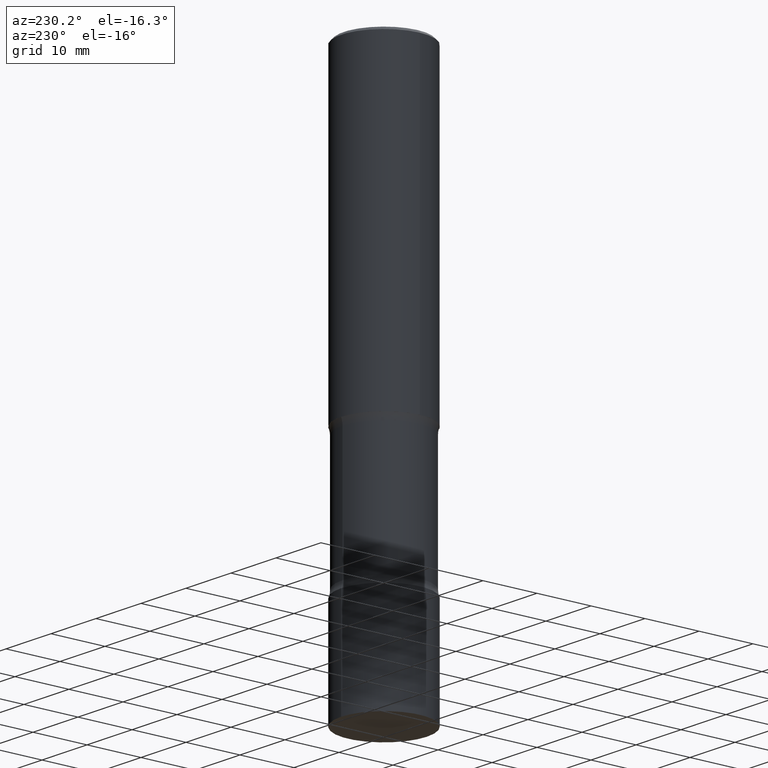
[diagram: clean part render]
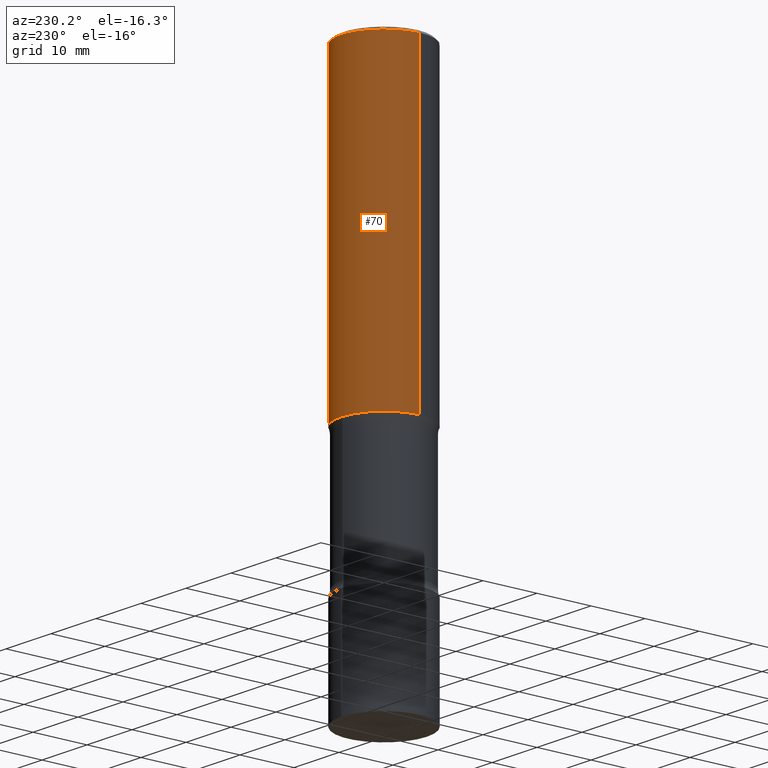
[diagram: same view with one face highlighted and labeled with its STEP entity id]
A machine part, auxiliary view. The second image highlights one B-rep face of the part: STEP entity #70.
In plain terms, the highlighted cylindrical surface (partial cylindrical patch) has radius 7.9375 mm, axis along (-0, 0, 1).
Its self-contained STEP definition (entity closure, byte-faithful):
#2 = VERTEX_POINT ( 'NONE', #223 ) ;
#9 = CARTESIAN_POINT ( 'NONE',  ( -0.3124999999999998890, 2.220446049250312292E-15, -1.537167215704657391E-29 ) ) ;
#29 = DIRECTION ( 'NONE',  ( -2.445468806185136597E-29, 3.491481338843145583E-15, 1.000000000000000000 ) ) ;
#34 = FACE_OUTER_BOUND ( 'NONE', #216, .T. ) ;
#39 = VECTOR ( 'NONE', #299, 39.37007874015748143 ) ;
#46 = ORIENTED_EDGE ( 'NONE', *, *, #487, .F. ) ;
#70 = ADVANCED_FACE ( 'NONE', ( #34 ), #421, .T. ) ;
#105 = VERTEX_POINT ( 'NONE', #266 ) ;
#111 = CARTESIAN_POINT ( 'NONE',  ( 0.000000000000000000, 0.000000000000000000, 0.000000000000000000 ) ) ;
#120 = CARTESIAN_POINT ( 'NONE',  ( 5.502304813916558464E-29, -7.855833012397078448E-15, -2.250000000000000444 ) ) ;
#140 = VECTOR ( 'NONE', #472, 39.37007874015748143 ) ;
#153 = DIRECTION ( 'NONE',  ( 1.000000000000000000, -6.982962677686269077E-15, 0.000000000000000000 ) ) ;
#159 = CARTESIAN_POINT ( 'NONE',  ( 0.3124999999999998890, -2.182175836776957558E-15, 1.523805242436229235E-29 ) ) ;
#187 = CARTESIAN_POINT ( 'NONE',  ( 4.890937612370273159E-31, -6.982962677686291609E-17, -0.02000000000000000042 ) ) ;
#197 = DIRECTION ( 'NONE',  ( -2.445468806185136597E-29, 3.491481338843145583E-15, 1.000000000000000000 ) ) ;
#199 = ORIENTED_EDGE ( 'NONE', *, *, #380, .T. ) ;
#205 = ORIENTED_EDGE ( 'NONE', *, *, #318, .T. ) ;
#216 = EDGE_LOOP ( 'NONE', ( #205, #199, #46, #476 ) ) ;
#221 = DIRECTION ( 'NONE',  ( -2.445468806185136597E-29, 3.491481338843145583E-15, 1.000000000000000000 ) ) ;
#223 = CARTESIAN_POINT ( 'NONE',  ( -0.3124999999999996669, 2.112346210000093077E-15, -0.02000000000000000042 ) ) ;
#228 = DIRECTION ( 'NONE',  ( 1.000000000000000000, -6.982962677686266711E-15, 4.876176775795935232E-29 ) ) ;
#236 = LINE ( 'NONE', #9, #140 ) ;
#244 = CARTESIAN_POINT ( 'NONE',  ( 0.3125000000000000000, -1.003800884917403837E-14, -2.250000000000000444 ) ) ;
#266 = CARTESIAN_POINT ( 'NONE',  ( -0.3125000000000000000, -1.742385270336656017E-15, -2.250000000000000444 ) ) ;
#289 = LINE ( 'NONE', #159, #39 ) ;
#299 = DIRECTION ( 'NONE',  ( -2.445468806185136877E-29, 3.491481338843145188E-15, 1.000000000000000000 ) ) ;
#318 = EDGE_CURVE ( 'NONE', #443, #105, #462, .T. ) ;
#357 = VERTEX_POINT ( 'NONE', #400 ) ;
#375 = AXIS2_PLACEMENT_3D ( 'NONE', #120, #221, #153 ) ;
#380 = EDGE_CURVE ( 'NONE', #105, #2, #236, .T. ) ;
#400 = CARTESIAN_POINT ( 'NONE',  ( 0.3124999999999996669, -2.213735251080464545E-15, -0.02000000000000000042 ) ) ;
#417 = AXIS2_PLACEMENT_3D ( 'NONE', #111, #197, #228 ) ;
#419 = AXIS2_PLACEMENT_3D ( 'NONE', #187, #29, #483 ) ;
#421 = CYLINDRICAL_SURFACE ( 'NONE', #417, 0.3124999999999998890 ) ;
#443 = VERTEX_POINT ( 'NONE', #244 ) ;
#462 = CIRCLE ( 'NONE', #375, 0.3125000000000000000 ) ;
#472 = DIRECTION ( 'NONE',  ( -2.445468806185136877E-29, 3.491481338843145188E-15, 1.000000000000000000 ) ) ;
#476 = ORIENTED_EDGE ( 'NONE', *, *, #478, .F. ) ;
#478 = EDGE_CURVE ( 'NONE', #443, #357, #289, .T. ) ;
#483 = DIRECTION ( 'NONE',  ( 1.000000000000000000, -6.982962677686267499E-15, 0.000000000000000000 ) ) ;
#487 = EDGE_CURVE ( 'NONE', #357, #2, #492, .T. ) ;
#492 = CIRCLE ( 'NONE', #419, 0.3124999999999996669 ) ;